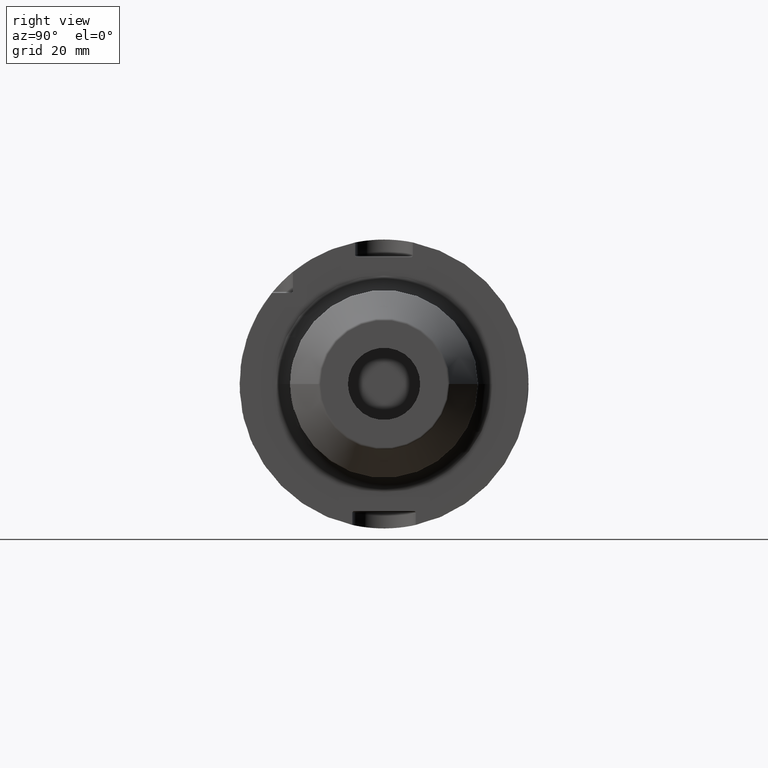
[diagram: clean part render]
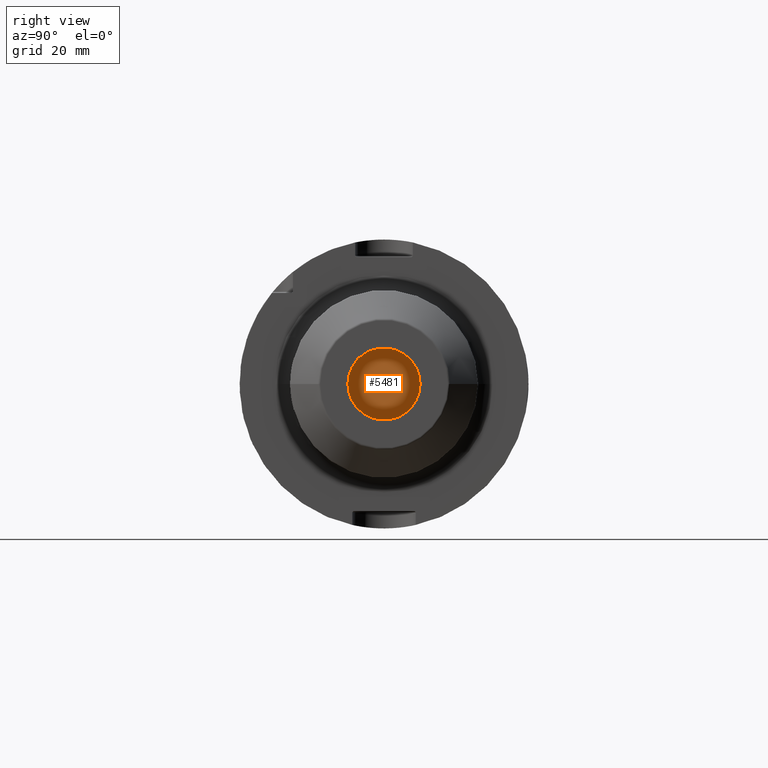
[diagram: same view with one face highlighted and labeled with its STEP entity id]
A machine part, right view. The second image highlights one B-rep face of the part: STEP entity #5481.
In plain terms, the highlighted planar face has unit normal (1, 0, 0).
Its self-contained STEP definition (entity closure, byte-faithful):
#2160=CARTESIAN_POINT('',(1.E2,0.E0,0.E0));
#2161=DIRECTION('',(-1.E0,0.E0,0.E0));
#2162=DIRECTION('',(0.E0,1.E0,0.E0));
#2163=AXIS2_PLACEMENT_3D('',#2160,#2161,#2162);
#2165=CARTESIAN_POINT('',(1.E2,0.E0,0.E0));
#2166=DIRECTION('',(1.E0,0.E0,0.E0));
#2167=DIRECTION('',(0.E0,1.E0,0.E0));
#2168=AXIS2_PLACEMENT_3D('',#2165,#2166,#2167);
#3459=CARTESIAN_POINT('',(1.E2,1.25E1,0.E0));
#3460=CARTESIAN_POINT('',(1.E2,-1.25E1,0.E0));
#3461=VERTEX_POINT('',#3459);
#3462=VERTEX_POINT('',#3460);
#5472=CARTESIAN_POINT('',(1.E2,0.E0,0.E0));
#5473=DIRECTION('',(1.E0,0.E0,0.E0));
#5474=DIRECTION('',(0.E0,-1.E0,0.E0));
#5475=AXIS2_PLACEMENT_3D('',#5472,#5473,#5474);
#5476=PLANE('',#5475);
#5477=ORIENTED_EDGE('',*,*,#5461,.T.);
#5478=ORIENTED_EDGE('',*,*,#5447,.F.);
#5479=EDGE_LOOP('',(#5477,#5478));
#5480=FACE_OUTER_BOUND('',#5479,.F.);
#5481=ADVANCED_FACE('',(#5480),#5476,.T.);
#2164=CIRCLE('',#2163,1.25E1);
#2169=CIRCLE('',#2168,1.25E1);
#5447=EDGE_CURVE('',#3461,#3462,#2169,.T.);
#5461=EDGE_CURVE('',#3461,#3462,#2164,.T.);